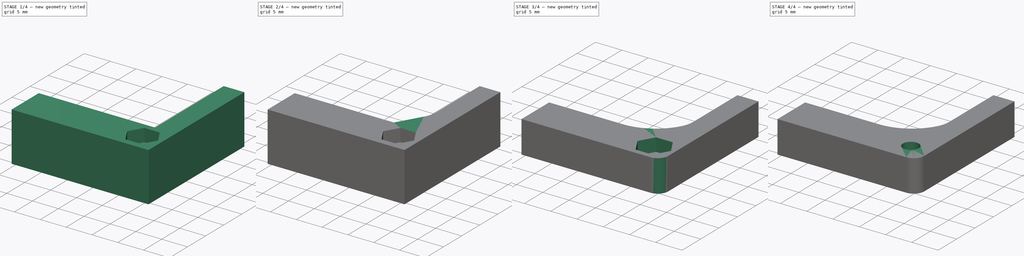
[diagram: build sequence overview — one tinted view per stage of 4, left to right]
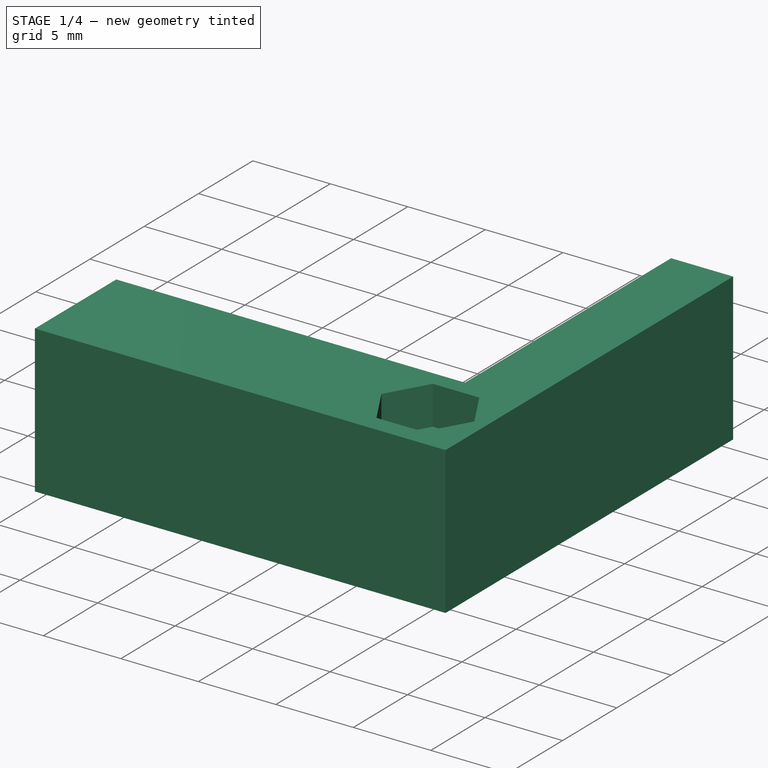
[diagram: stage 1 of 4 — iso view after this stage's code; geometry added in this stage tinted green]
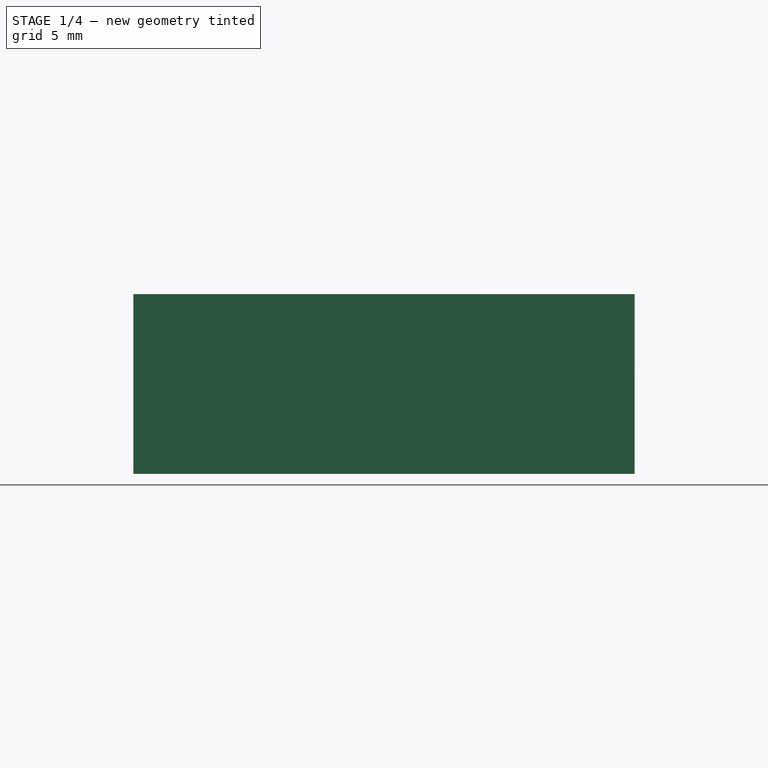
[diagram: stage 1 of 4 — front view after this stage's code; geometry added in this stage tinted green]
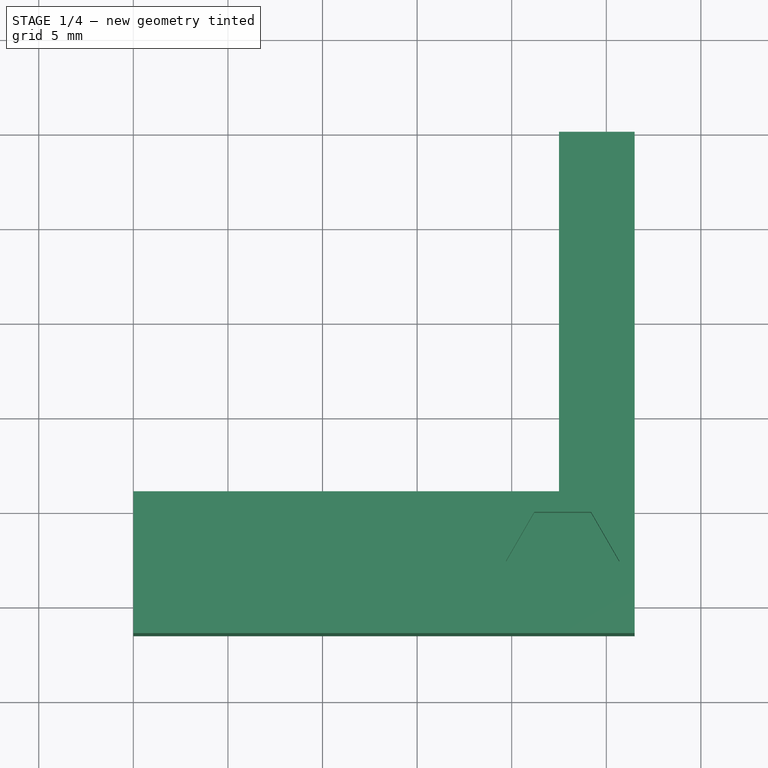
[diagram: stage 1 of 4 — top view after this stage's code; geometry added in this stage tinted green]
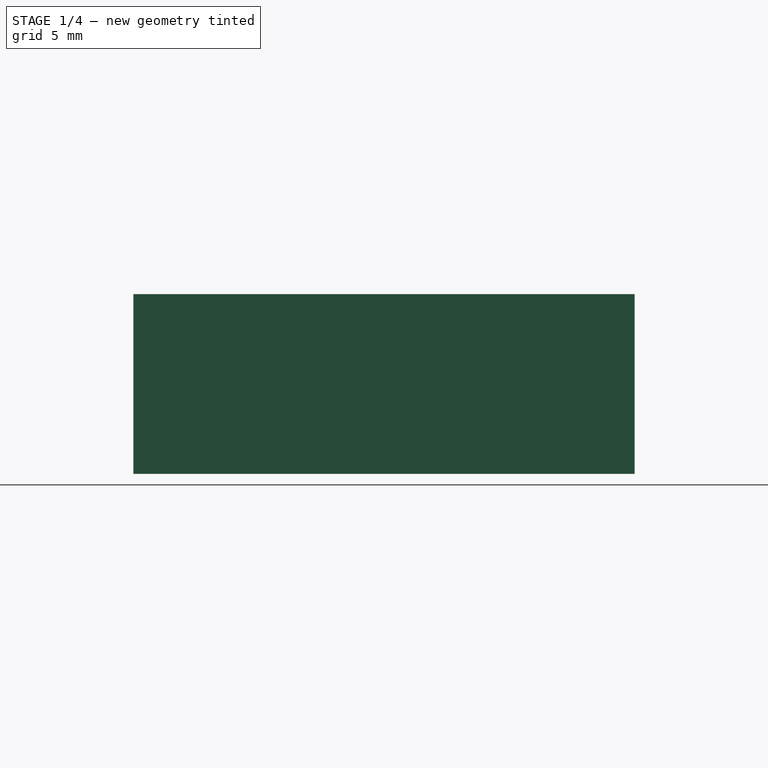
[diagram: stage 1 of 4 — right view after this stage's code; geometry added in this stage tinted green]
FCSTD DOCUMENT  (FreeCAD 0.16R6703 (Git))
Label: Presilha Mesa-inv
License: FreeArt
LicenseURL: http://artlibre.org/licence/lal
objects: Sketcher::SketchObject×10, PartDesign::Pocket×7, PartDesign::Pad×3, PartDesign::Fillet×3, App::MeasureDistance×3
note: 33 computed .brp shape members not serialized (recipe doc carries the construction recipe); baked Part::Feature solids carry a one-line shape summary decoded from their .brp

FEATURE [Sketcher::SketchObject] Sketch
  sketch-geometry (6):
    g0: LineSegment StartX=0 StartY=0 StartZ=0 EndX=0 EndY=35 EndZ=0
    g1: LineSegment StartX=0 StartY=35 StartZ=0 EndX=-12.5 EndY=35 EndZ=0
    g2: LineSegment StartX=-12.5 StartY=35 StartZ=0 EndX=-12.5 EndY=16 EndZ=0
    g3: LineSegment StartX=-12.5 StartY=16 StartZ=0 EndX=-35 EndY=16 EndZ=0
    g4: LineSegment StartX=-35 StartY=16 StartZ=0 EndX=-35 EndY=0 EndZ=0
    g5: LineSegment StartX=-35 StartY=0 StartZ=0 EndX=0 EndY=0 EndZ=0
  constraints (17):
    c: Coincident(g-1,g0)
    c: PointOnObject(g0,g-2)
    c: Coincident(g0,g1)
    c: Horizontal(g1)
    c: Coincident(g1,g2)
    c: Vertical(g2)
    c: Coincident(g2,g3)
    c: Horizontal(g3)
    c: Coincident(g3,g4)
    c: Vertical(g4)
    c: Coincident(g4,g5)
    c: Coincident(g5,g0)
    c: Horizontal(g5)
    c: DistanceX(g5,g5) = 35
    c: DistanceY(g0,g0) = 35
    c: DistanceY(g4,g4) = 16
    c: DistanceX(g1,g1) = 12.5
FEATURE [PartDesign::Pad] Pad
  Length = 9.5
  Length2 = 100
  Sketch = -> Sketch
  Type = 0
FEATURE [Sketcher::SketchObject] Sketch001
  Placement = pos=(0,0,9.5) rot=(0,0,1;0rad)
  Support = -> Pad [Face8]
  sketch-geometry (6):
    g0: LineSegment StartX=0 StartY=0 StartZ=0 EndX=0 EndY=50 EndZ=0
    g1: LineSegment StartX=0 StartY=50 StartZ=0 EndX=-8.5 EndY=50 EndZ=0
    g2: LineSegment StartX=-8.5 StartY=50 StartZ=0 EndX=-8.5 EndY=8.5 EndZ=0
    g3: LineSegment StartX=-8.5 StartY=8.5 StartZ=0 EndX=-50 EndY=8.5 EndZ=0
    g4: LineSegment StartX=-50 StartY=8.5 StartZ=0 EndX=-50 EndY=0 EndZ=0
    g5: LineSegment StartX=-50 StartY=0 StartZ=0 EndX=0 EndY=0 EndZ=0
  constraints (17):
    c: Coincident(g-1,g0)
    c: PointOnObject(g0,g-2)
    c: Coincident(g0,g1)
    c: Horizontal(g1)
    c: Coincident(g1,g2)
    c: Vertical(g2)
    c: Coincident(g2,g3)
    c: Horizontal(g3)
    c: Coincident(g3,g4)
    c: Vertical(g4)
    c: Coincident(g4,g5)
    c: Coincident(g5,g0)
    c: Horizontal(g5)
    c: DistanceX(g1,g1) = 8.5
    c: DistanceY(g4,g4) = 8.5
    c: DistanceX(g5,g5) = 50
    c: DistanceY(g0,g0) = 50
FEATURE [PartDesign::Pocket] Pocket
  Length = 5
  Sketch = -> Sketch001
  Type = 1
FEATURE [Sketcher::SketchObject] Sketch002
  Placement = pos=(0,0,9.5) rot=(0,0,1;0rad)
  Support = -> Pocket [Face1]
  sketch-geometry (9):
    g0: LineSegment [constr] StartX=-8.48873 StartY=8.48879 StartZ=0 EndX=-17.7369 EndY=17.7369 EndZ=0
    g1: LineSegment [constr] StartX=-8.48873 StartY=8.48879 StartZ=0 EndX=-13.6474 EndY=8.48879 EndZ=0
    g2: LineSegment StartX=-10.8071 StartY=9.70909 StartZ=0 EndX=-9.30711 EndY=12.3072 EndZ=0
    g3: LineSegment StartX=-9.30711 StartY=12.3072 StartZ=0 EndX=-10.8071 EndY=14.9052 EndZ=0
    g4: LineSegment StartX=-10.8071 StartY=14.9052 StartZ=0 EndX=-13.8071 EndY=14.9052 EndZ=0
    g5: LineSegment StartX=-13.8071 StartY=14.9052 StartZ=0 EndX=-15.3071 EndY=12.3072 EndZ=0
    g6: LineSegment StartX=-15.3071 StartY=12.3072 StartZ=0 EndX=-13.8071 EndY=9.70909 EndZ=0
    g7: LineSegment StartX=-13.8071 StartY=9.70909 StartZ=0 EndX=-10.8071 EndY=9.70909 EndZ=0
    g8: Circle [constr] CenterX=-12.3071 CenterY=12.3072 CenterZ=0 NormalX=0 NormalY=0 NormalZ=1 Radius=3
  constraints (22):
    c: Coincident(g1,g0)
    c: Horizontal(g1)
    c: Angle(g0,g1) = 0.785398
    c: Coincident(g2,g3)
    c: Coincident(g3,g4)
    c: Coincident(g4,g5)
    c: Coincident(g5,g6)
    c: Coincident(g6,g7)
    c: Coincident(g7,g2)
    c: Equal(g2, g3-g7) x5
    c: PointOnObject(g2,g8)
    c: PointOnObject(g3,g8)
    c: PointOnObject(g4,g8)
    c: PointOnObject(g5,g8)
    c: PointOnObject(g6,g8)
    c: PointOnObject(g7,g8)
    c: PointOnObject(g8,g0)
    c: Parallel(g7,g1)
    c: DistanceX(g-2,g0) = -8.48873
    c: DistanceY(g-1,g0) = 8.48879
    c: Distance(g8,g0) = 5.4
    c: Radius(g8) = 3
FEATURE [PartDesign::Pocket] Pocket001
  Length = 2.5
  Sketch = -> Sketch002
  Type = 0
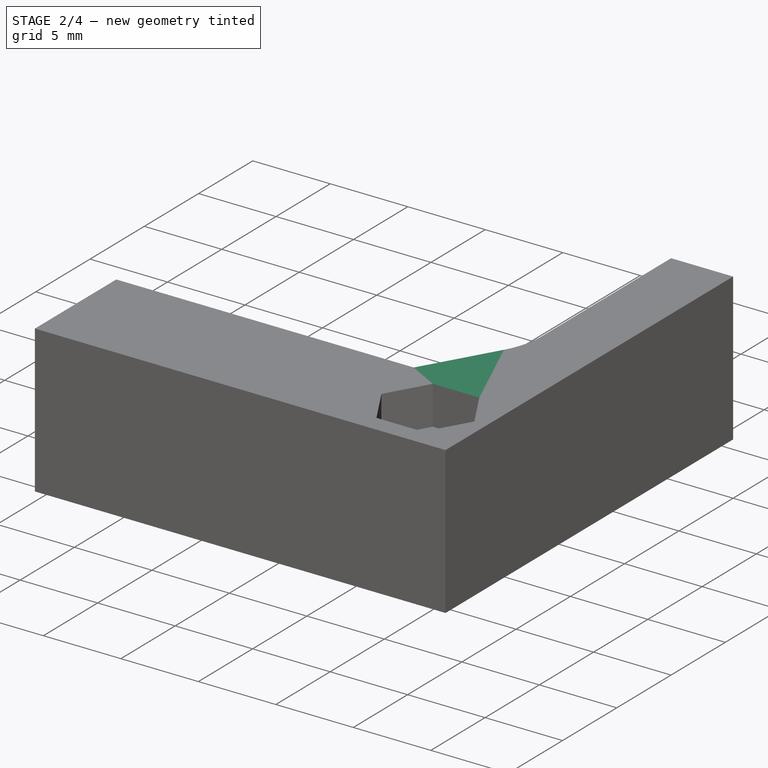
[diagram: stage 2 of 4 — iso view after this stage's code; geometry added in this stage tinted green]
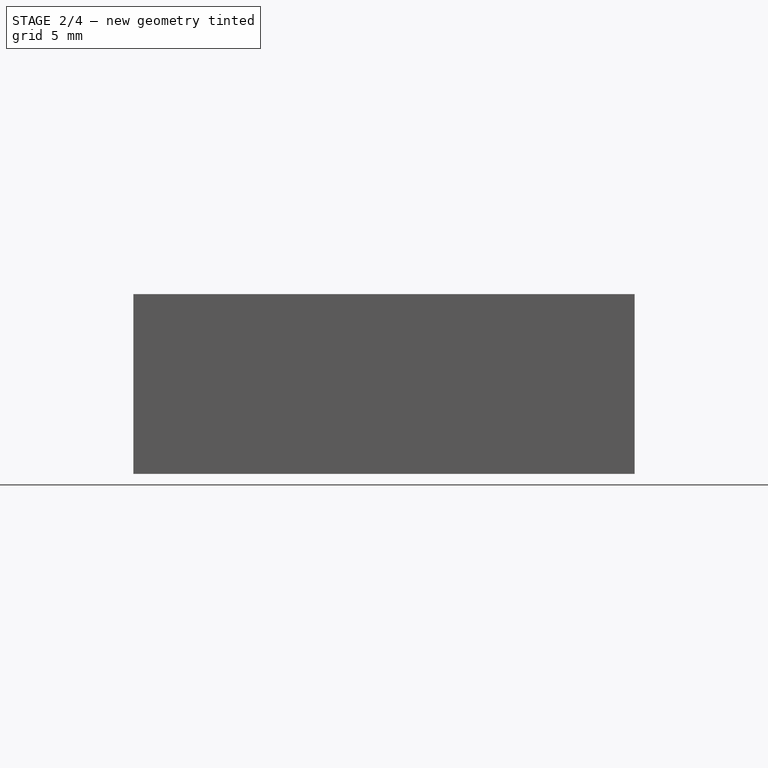
[diagram: stage 2 of 4 — front view after this stage's code; geometry added in this stage tinted green]
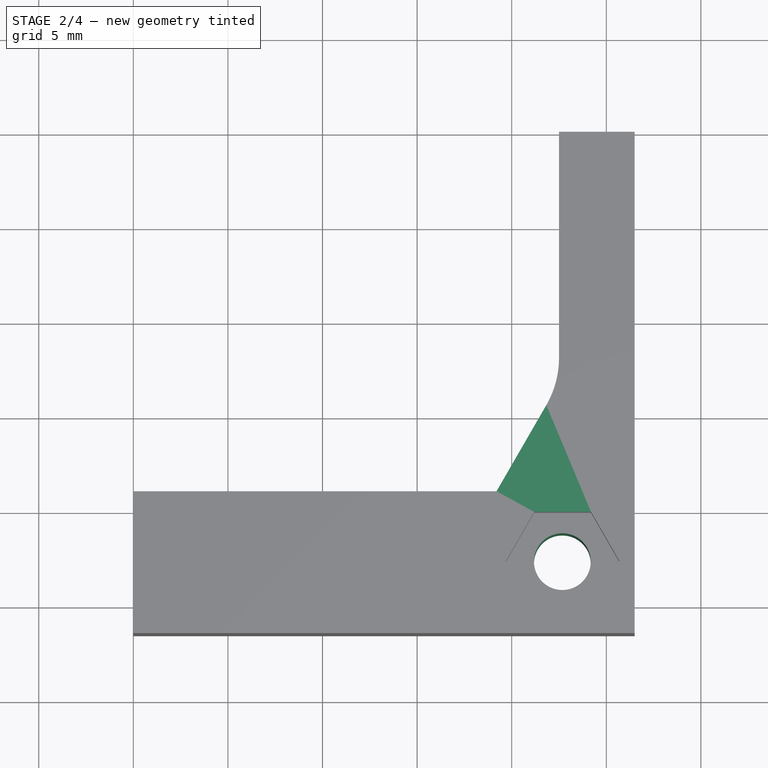
[diagram: stage 2 of 4 — top view after this stage's code; geometry added in this stage tinted green]
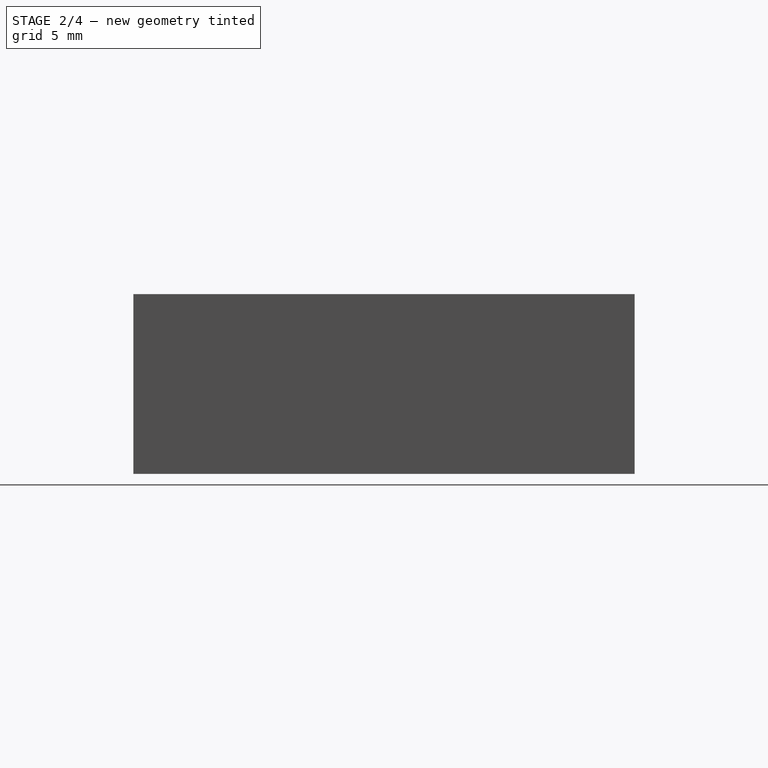
[diagram: stage 2 of 4 — right view after this stage's code; geometry added in this stage tinted green]
FEATURE [Sketcher::SketchObject] Sketch003
  Placement = pos=(0,0,7) rot=(0,0,1;0rad)
  Support = -> Pocket001 [Face15]
  sketch-geometry (4):
    g0: Circle CenterX=-12.3233 CenterY=12.3203 CenterZ=0 NormalX=0 NormalY=0 NormalZ=1 Radius=1.5
    g1: LineSegment [constr] StartX=-9.59273 StartY=12.3203 StartZ=0 EndX=-15 EndY=12.3203 EndZ=0
    g2: LineSegment [constr] StartX=-13.637 StartY=14.6239 StartZ=0 EndX=-11 EndY=10 EndZ=0
    g3: LineSegment [constr] StartX=-13.6562 StartY=10 StartZ=0 EndX=-11 EndY=14.6239 EndZ=0
  constraints (5):
    c: Horizontal(g1)
    c: PointOnObject(g0,g3)
    c: PointOnObject(g0,g1)
    c: PointOnObject(g0,g2)
    c: Radius(g0) = 1.5
FEATURE [PartDesign::Pocket] Pocket002
  Length = 5
  Sketch = -> Sketch003
  Type = 1
FEATURE [Sketcher::SketchObject] Sketch004
  Placement = pos=(0,0,9.5) rot=(0,0,1;0rad)
  Support = -> Pocket002 [Face1]
  sketch-geometry (3):
    g0: LineSegment StartX=-16 StartY=15.6562 StartZ=0 EndX=-12.3323 EndY=15.6562 EndZ=0
    g1: LineSegment StartX=-12.3323 StartY=15.6562 StartZ=0 EndX=-12.3323 EndY=22 EndZ=0
    g2: LineSegment StartX=-12.3323 StartY=22 StartZ=0 EndX=-16 EndY=15.6562 EndZ=0
  constraints (5):
    c: Horizontal(g0)
    c: Coincident(g0,g1)
    c: Vertical(g1)
    c: Coincident(g1,g2)
    c: Coincident(g2,g0)
FEATURE [PartDesign::Pad] Pad001
  Length = 10
  Length2 = 100
  Reversed = true
  Sketch = -> Sketch004
  Type = 3
  UpToFace = -> Pocket002 [Face14]
FEATURE [PartDesign::Fillet] Fillet
  Base = -> Pad001 [Edge16]
  Radius = 5
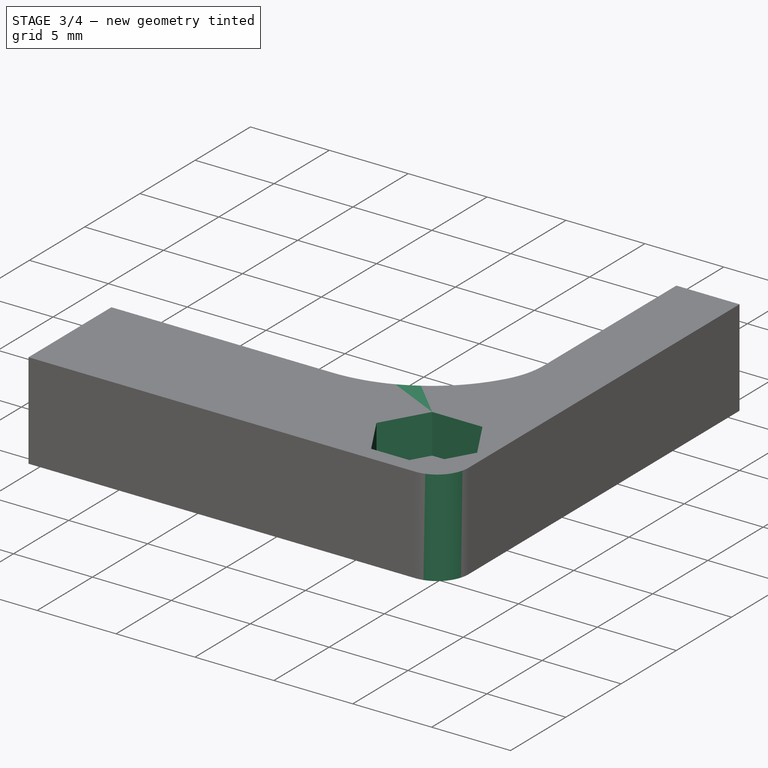
[diagram: stage 3 of 4 — iso view after this stage's code; geometry added in this stage tinted green]
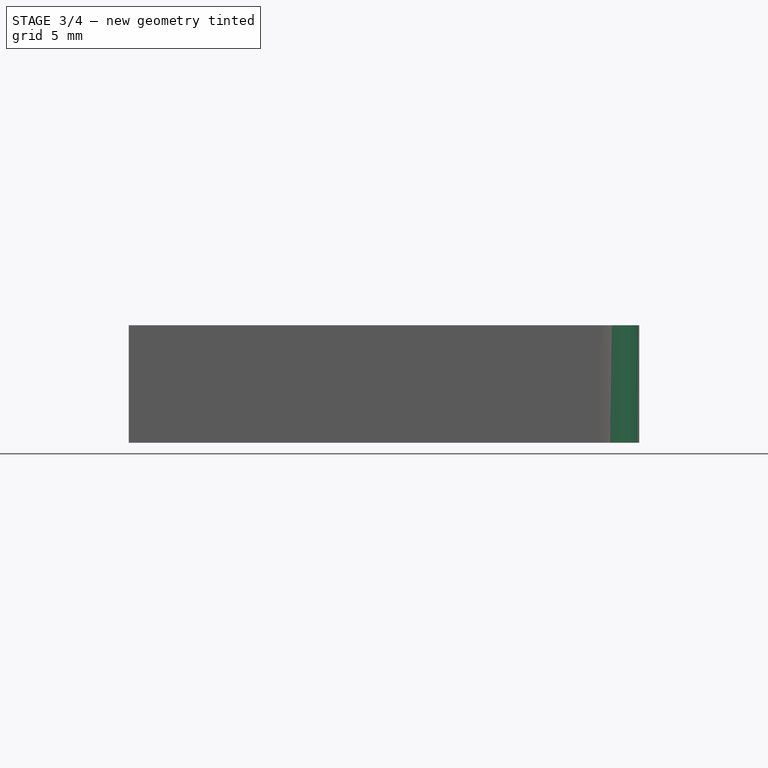
[diagram: stage 3 of 4 — front view after this stage's code; geometry added in this stage tinted green]
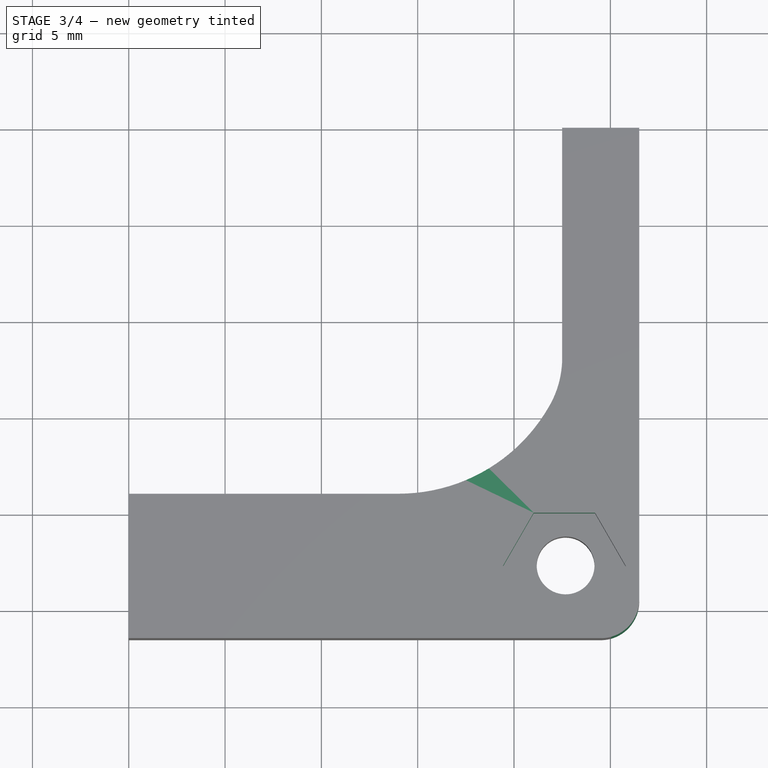
[diagram: stage 3 of 4 — top view after this stage's code; geometry added in this stage tinted green]
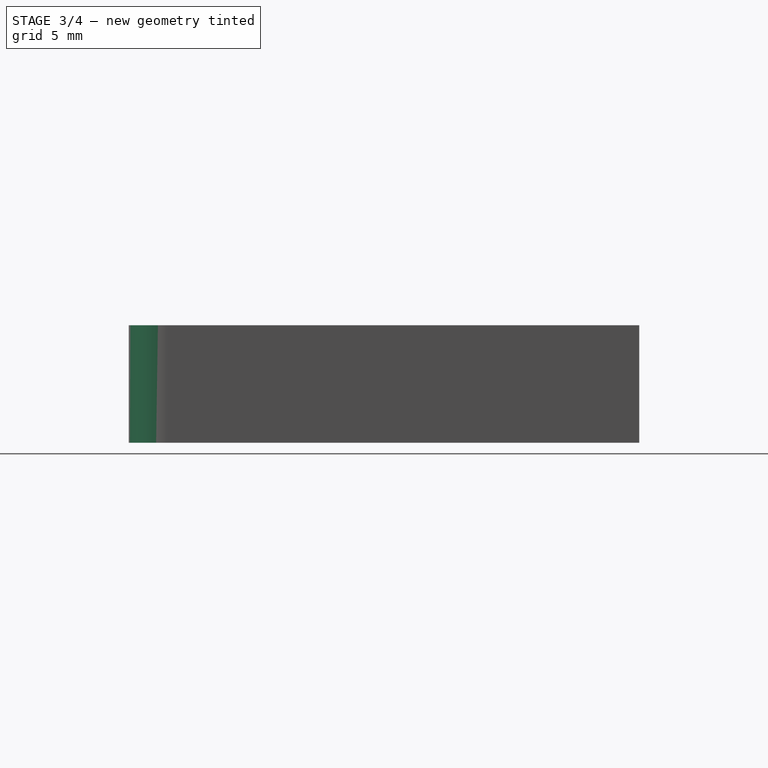
[diagram: stage 3 of 4 — right view after this stage's code; geometry added in this stage tinted green]
FEATURE [PartDesign::Fillet] Fillet001
  Base = -> Fillet [Edge28]
  Radius = 10
FEATURE [Sketcher::SketchObject] Sketch005
  Placement = pos=(-8.5,0,0) rot=(0.57735,0.57735,0.57735;2.0944rad)
  Support = -> Fillet001 [Face10]
  sketch-geometry (4):
    g0: LineSegment StartX=8 StartY=3.4 StartZ=0 EndX=35.6723 EndY=3.4 EndZ=0
    g1: LineSegment StartX=35.6723 StartY=3.4 StartZ=0 EndX=35.6723 EndY=0 EndZ=0
    g2: LineSegment StartX=35.6723 StartY=0 StartZ=0 EndX=8 EndY=0 EndZ=0
    g3: LineSegment StartX=8 StartY=0 StartZ=0 EndX=8 EndY=3.4 EndZ=0
  constraints (13):
    c: Coincident(g0,g1)
    c: Coincident(g1,g2)
    c: Coincident(g2,g3)
    c: Coincident(g3,g0)
    c: Horizontal(g0)
    c: Horizontal(g2)
    c: Vertical(g1)
    c: Vertical(g3)
    c: DistanceY(g3,g3) = 3.4
    c: Equal(g1,g3)
    c: Equal(g0,g2)
    c: PointOnObject(g2,g-1)
    c: DistanceX(g-2,g0) = 8
FEATURE [PartDesign::Pocket] Pocket003
  Length = 5
  Sketch = -> Sketch005
  Type = 1
FEATURE [PartDesign::Fillet] Fillet002
  Base = -> Pocket003 [Edge2]
  Radius = 2
FEATURE [App::MeasureDistance] Distance  label="Distance: 7,5013 mm"
  Distance = 7.5013
  P1 = (-34.7498,16,9.5)
  P2 = (-34.6099,8.5,9.5)
FEATURE [App::MeasureDistance] Distance001  label="Distance: 4,00005 mm"
  Distance = 4.00005
  P1 = (-12.5,34.9281,9.5)
  P2 = (-8.5,34.9088,9.5)
FEATURE [Sketcher::SketchObject] Sketch006
  Placement = pos=(0,0,9.5) rot=(0,0,1;0rad)
  Support = -> Fillet002 [Face2]
  sketch-geometry (10):
    g0: LineSegment [constr] StartX=-15 StartY=12.2536 StartZ=0 EndX=-9.57707 EndY=12.2536 EndZ=0
    g1: LineSegment [constr] StartX=-13.7198 StartY=14.5914 StartZ=0 EndX=-11.0796 EndY=9.95467 EndZ=0
    g2: LineSegment [constr] StartX=-11.021 StartY=14.6344 StartZ=0 EndX=-13.6762 EndY=10.0123 EndZ=0
    g3: LineSegment StartX=-10.7944 StartY=9.49226 StartZ=0 EndX=-9.20009 EndY=12.2536 EndZ=0
    g4: LineSegment StartX=-9.20009 StartY=12.2536 StartZ=0 EndX=-10.7944 EndY=15.015 EndZ=0
    g5: LineSegment StartX=-10.7944 StartY=15.015 StartZ=0 EndX=-13.9829 EndY=15.015 EndZ=0
    g6: LineSegment StartX=-13.9829 StartY=15.015 StartZ=0 EndX=-15.5772 EndY=12.2536 EndZ=0
    g7: LineSegment StartX=-15.5772 StartY=12.2536 StartZ=0 EndX=-13.9829 EndY=9.49226 EndZ=0
    g8: LineSegment StartX=-13.9829 StartY=9.49226 StartZ=0 EndX=-10.7944 EndY=9.49226 EndZ=0
    g9: Circle [constr] CenterX=-12.3887 CenterY=12.2536 CenterZ=0 NormalX=0 NormalY=0 NormalZ=1 Radius=3.18857
  constraints (19):
    c: Horizontal(g0)
    c: Coincident(g3,g4)
    c: Coincident(g4,g5)
    c: Coincident(g5,g6)
    c: Coincident(g6,g7)
    c: Coincident(g7,g8)
    c: Coincident(g8,g3)
    c: Equal(g3, g4-g8) x5
    c: PointOnObject(g3,g9)
    c: PointOnObject(g4,g9)
    c: PointOnObject(g5,g9)
    c: PointOnObject(g6,g9)
    c: PointOnObject(g7,g9)
    c: PointOnObject(g8,g9)
    c: PointOnObject(g9,g2)
    c: PointOnObject(g9,g0)
    c: PointOnObject(g9,g1)
    c: Parallel(g8,g-1)
    c: Distance(g-1,g9) = 17.425
FEATURE [App::MeasureDistance] Distance002  label="Distance: 5,49286 mm"
  Distance = 5.49286
  P1 = (-14.6656,13.7888,9.5)
  P2 = (-10.0499,10.811,9.5)
FEATURE [PartDesign::Pocket] Pocket004
  Length = 2.5
  Sketch = -> Sketch006
  Type = 0
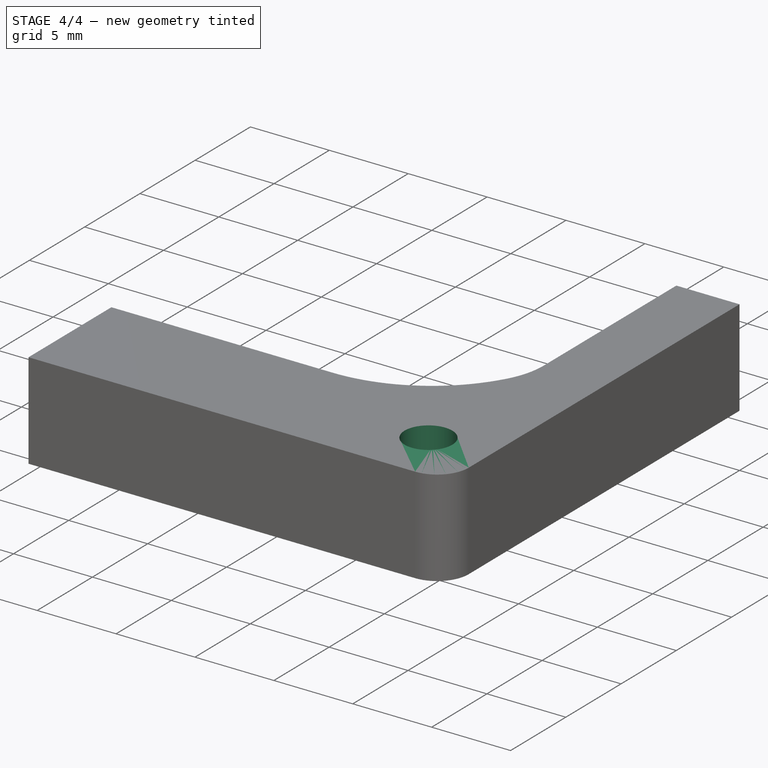
[diagram: stage 4 of 4 — iso view after this stage's code; geometry added in this stage tinted green]
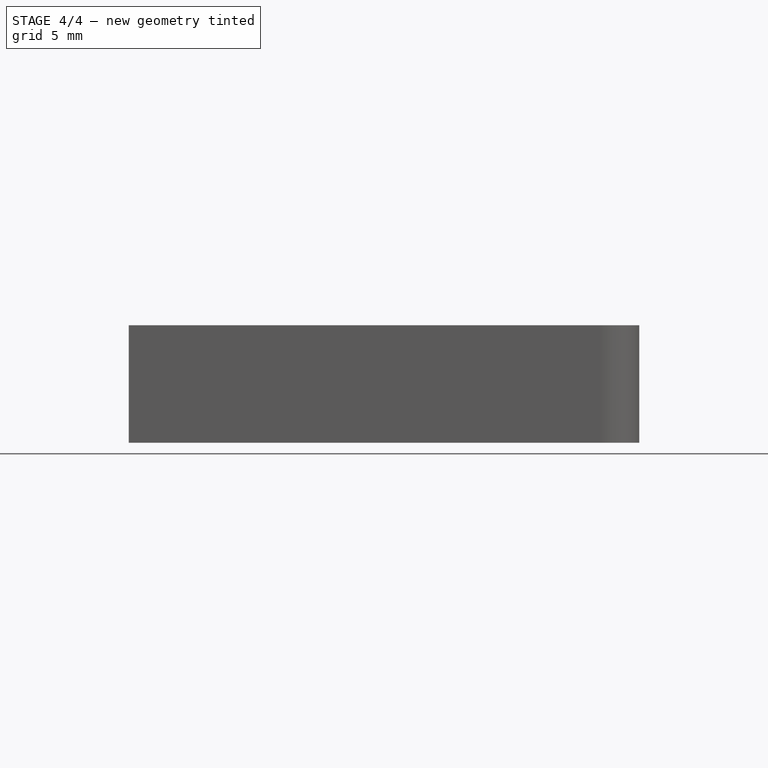
[diagram: stage 4 of 4 — front view after this stage's code; geometry added in this stage tinted green]
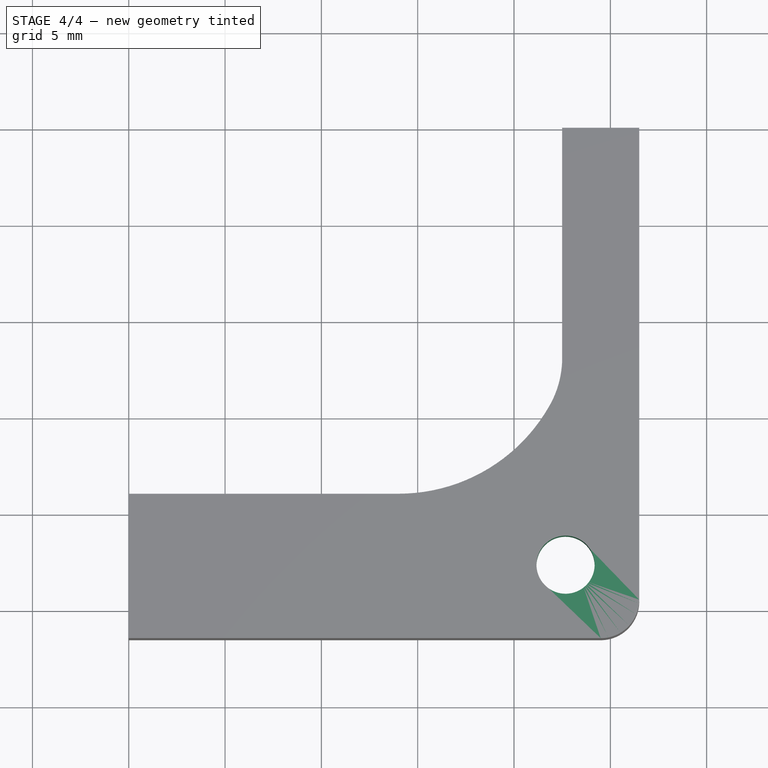
[diagram: stage 4 of 4 — top view after this stage's code; geometry added in this stage tinted green]
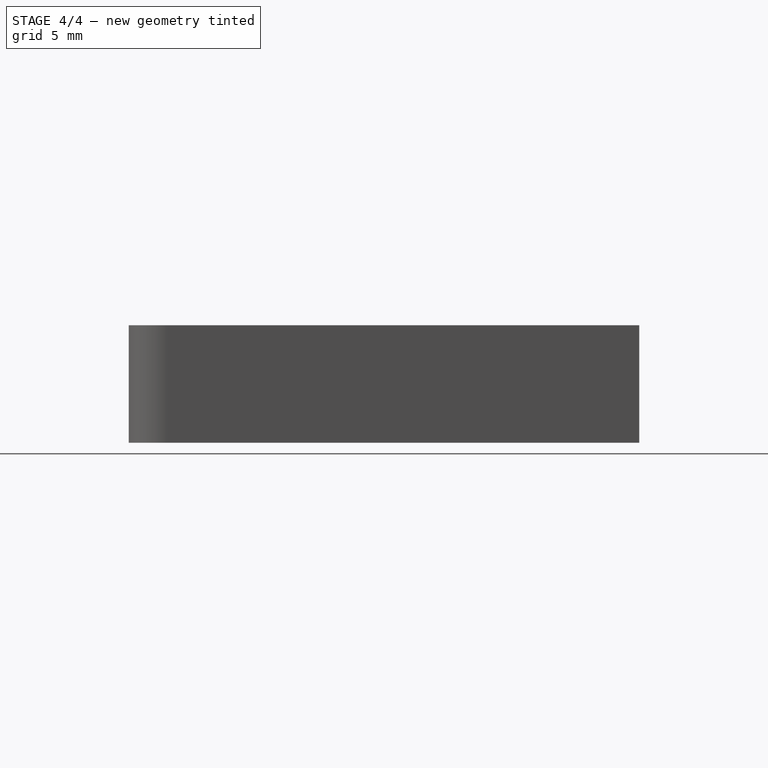
[diagram: stage 4 of 4 — right view after this stage's code; geometry added in this stage tinted green]
FEATURE [Sketcher::SketchObject] Sketch007
  Placement = pos=(0,0,9.5) rot=(0,0,1;0rad)
  Support = -> Pocket004 [Face2]
  sketch-geometry (1):
    g0: Circle CenterX=-12.5674 CenterY=12.4815 CenterZ=0 NormalX=0 NormalY=0 NormalZ=1 Radius=3.57067
FEATURE [PartDesign::Pad] Pad002
  Length = 2.5
  Length2 = 100
  Reversed = true
  Sketch = -> Sketch007
  Type = 0
FEATURE [Sketcher::SketchObject] Sketch008
  Placement = pos=(0,0,3.4) rot=(1,0,0;3.14159rad)
  Support = -> Pad002 [Face4]
  sketch-geometry (1):
    g0: Circle CenterX=-12.3258 CenterY=-12.3169 CenterZ=0 NormalX=0 NormalY=0 NormalZ=1 Radius=1.50927
  constraints (2):
    c: DistanceX(g-2,g0) = -12.3258
    c: DistanceY(g-1,g0) = -12.3169
FEATURE [PartDesign::Pocket] Pocket005
  Length = 5
  Sketch = -> Sketch008
  Type = 1
FEATURE [Sketcher::SketchObject] Sketch009
  Placement = pos=(0,0,3.4) rot=(1,0,0;3.14159rad)
  Support = -> Pocket005 [Face5]
  sketch-geometry (8):
    g0: Circle [constr] CenterX=-12.3082 CenterY=-12.3234 CenterZ=0 NormalX=0 NormalY=0 NormalZ=1 Radius=1.53604
    g1: LineSegment StartX=-10.7082 StartY=-15.0947 StartZ=0 EndX=-9.1082 EndY=-12.3234 EndZ=0
    g2: LineSegment StartX=-9.1082 StartY=-12.3234 StartZ=0 EndX=-10.7082 EndY=-9.55212 EndZ=0
    g3: LineSegment StartX=-10.7082 StartY=-9.55212 StartZ=0 EndX=-13.9082 EndY=-9.55212 EndZ=0
    g4: LineSegment StartX=-13.9082 StartY=-9.55212 StartZ=0 EndX=-15.5082 EndY=-12.3234 EndZ=0
    g5: LineSegment StartX=-15.5082 StartY=-12.3234 StartZ=0 EndX=-13.9082 EndY=-15.0947 EndZ=0
    g6: LineSegment StartX=-13.9082 StartY=-15.0947 StartZ=0 EndX=-10.7082 EndY=-15.0947 EndZ=0
    g7: Circle [constr] CenterX=-12.3082 CenterY=-12.3234 CenterZ=0 NormalX=0 NormalY=0 NormalZ=1 Radius=3.2
  constraints (18):
    c: Coincident(g1,g2)
    c: Coincident(g2,g3)
    c: Coincident(g3,g4)
    c: Coincident(g4,g5)
    c: Coincident(g5,g6)
    c: Coincident(g6,g1)
    c: Equal(g1, g2-g6) x5
    c: PointOnObject(g1,g7)
    c: PointOnObject(g2,g7)
    c: PointOnObject(g3,g7)
    c: PointOnObject(g4,g7)
    c: PointOnObject(g5,g7)
    c: PointOnObject(g6,g7)
    c: Coincident(g7,g0)
    c: DistanceX(g-2,g0) = -12.3082
    c: DistanceY(g-1,g0) = -12.3234
    c: Parallel(g3,g-1)
    c: Radius(g7) = 3.2
FEATURE [PartDesign::Pocket] Pocket006
  Length = 2.5
  Sketch = -> Sketch009
  Type = 0
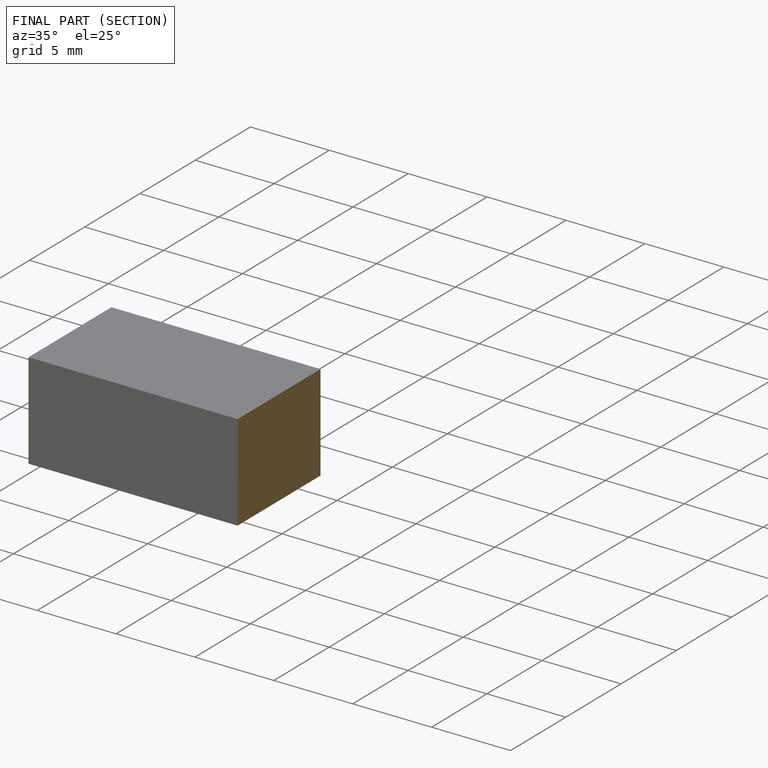
[diagram: finished part — half-section view (interior)]
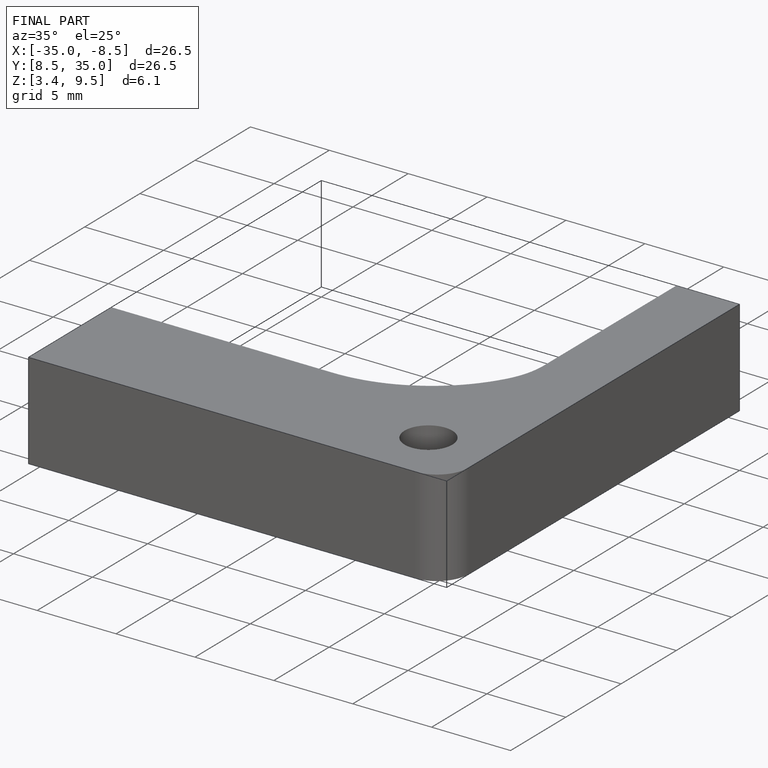
[diagram: finished part — iso view with bounding-box wireframe]
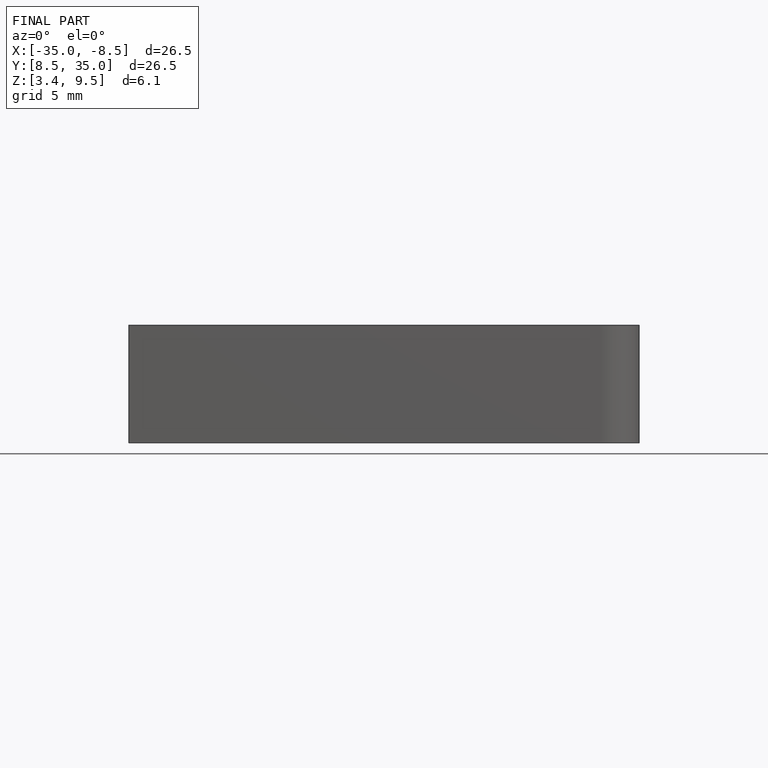
[diagram: finished part — front view with bounding-box wireframe]
